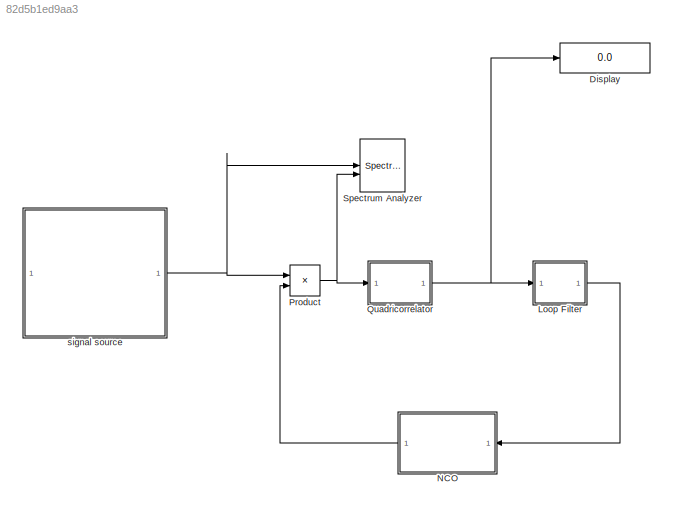
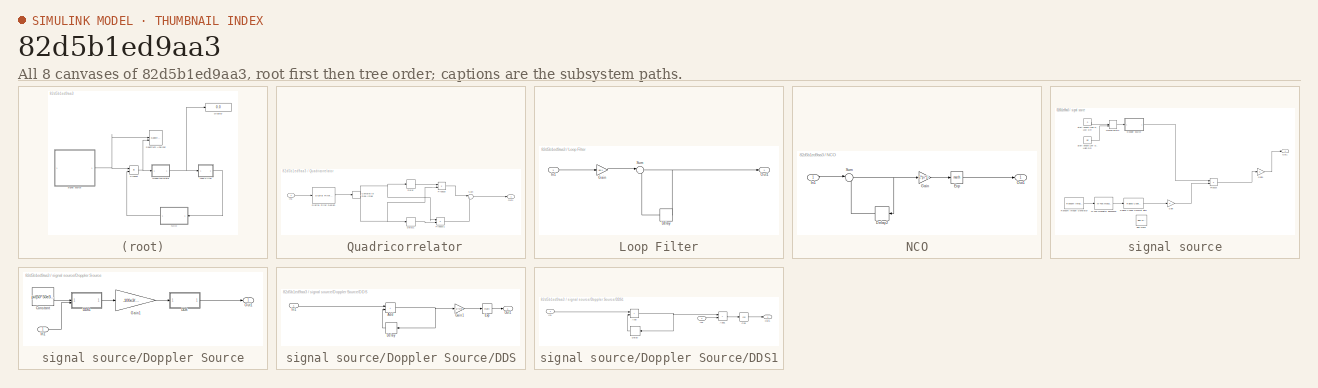
[diagram: thumbnail index - all 8 canvases of the model, root first then tree order]
MODEL slx_82d5b1ed9aa3
KIND model
CONFIG AbsTol = auto
CONFIG EnableMultiTasking = off
CONFIG FixedStep = auto
CONFIG MaxStep = auto
CONFIG MinStep = auto
CONFIG RelTol = 1e-3
CONFIG SampleTimeConstraint = Unconstrained
CONFIG SolverName = VariableStepAuto
CONFIG StartTime = 0.0
CONFIG StopTime = 10
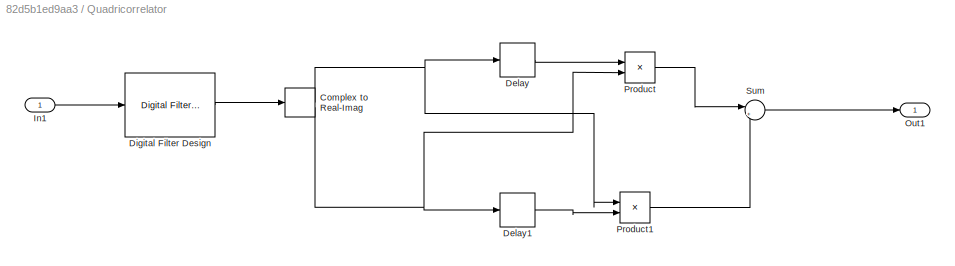
BLOCK [SubSystem]  Quadricorrelator
BLOCK [ComplexToRealImag]  Quadricorrelator/Complex to Real-Imag
BLOCK [Delay]  Quadricorrelator/Delay
  DelayLength = 1
  InputPortMap = u0
BLOCK [Delay]  Quadricorrelator/Delay1
  DelayLength = 1
  InputPortMap = u0
BLOCK [Reference]  Quadricorrelator/Digital Filter Design  REF=dsparch4/Digital
Filter Design
  SourceBlock = dsparch4/Digital\nFilter Design
  SourceType = Digital Filter Design
  UserDataPersistent = on
BLOCK [Inport]  Quadricorrelator/In1
BLOCK [Outport]  Quadricorrelator/Out1
BLOCK [Product]  Quadricorrelator/Product
BLOCK [Product]  Quadricorrelator/Product1
BLOCK [Sum]  Quadricorrelator/Sum
  Inputs = |+-
BLOCK [Display] Display
  Decimation = 1
BLOCK [SubSystem] Loop Filter
BLOCK [Delay] Loop Filter/Delay
  DelayLength = 1
  InputPortMap = u0
BLOCK [Gain] Loop Filter/Gain
  Gain = 8e-1
BLOCK [Inport] Loop Filter/In1
BLOCK [Outport] Loop Filter/Out1
BLOCK [Sum] Loop Filter/Sum
  Inputs = |++
BLOCK [SubSystem] NCO
  NameLocation = top
BLOCK [Delay] NCO/Delay2
  DelayLength = 1
  InputPortMap = u0
  NameLocation = top
BLOCK [Math] NCO/Exp
BLOCK [Gain] NCO/Gain
  Gain = -2*pi*1i
BLOCK [Inport] NCO/In1
BLOCK [Outport] NCO/Out1
BLOCK [Sum] NCO/Sum
  Inputs = |++
BLOCK [Product] Product
BLOCK [SpectrumAnalyzer] Spectrum Analyzer
  DefaultConfigurationName = spbscopes.SpectrumAnalyzerBlockCfg
  NumInputPorts = 2
  ScopeSpecificationString = spbscopes.SpectrumAnalyzerBlockCfg('CurrentConfiguration', extmgr.ConfigurationSet(extmgr.Configuration('Core','General UI',true,'FigureColor',[0.12941     0.12941     0.12941]),extmgr.Configuration('Visuals','Spectrum',true,'Title','','YLabel','','MinYLim','-103.4567','MaxYLim','13.2493','Legend',false,'AxesProperties',struct('XGrid',{'on','on'},'YGrid',{'on','on'},'ZGrid',{'on','on'},'Color',{[0...<+2468ch>
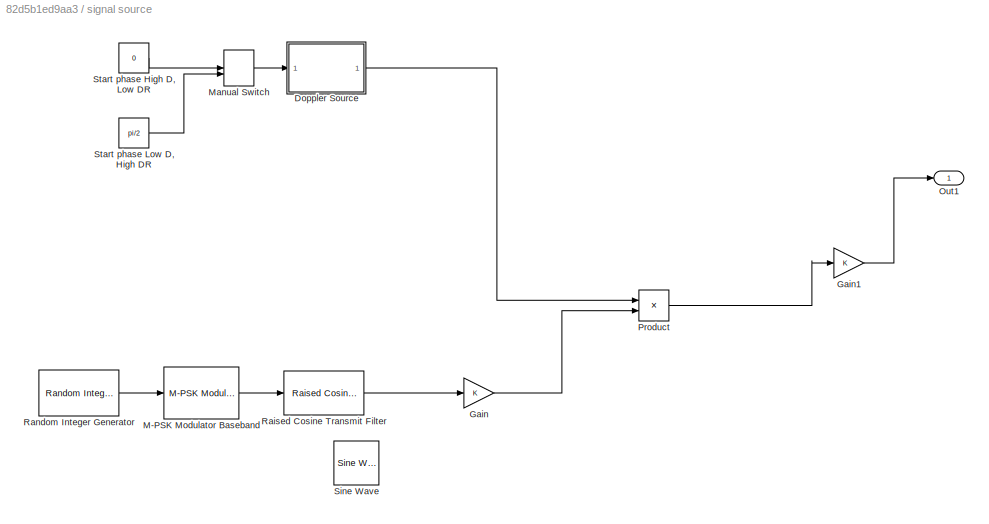
BLOCK [SubSystem] signal source
BLOCK [SubSystem] signal source/Doppler Source
BLOCK [Constant] signal source/Doppler Source/Constant
  SampleTime = 1/(50e3*8)
  Value = pi/(50*50e3*8)
BLOCK [SubSystem] signal source/Doppler Source/DDS
BLOCK [Sum] signal source/Doppler Source/DDS/Add
  IconShape = rectangular
BLOCK [Delay] signal source/Doppler Source/DDS/Delay
  DelayLength = 1
  InputPortMap = u0
  NameLocation = top
  SampleTime = 1/(50e3*8)
BLOCK [Math] signal source/Doppler Source/DDS/Exp
BLOCK [Gain] signal source/Doppler Source/DDS/Gain1
  Gain = -1i*2*pi
BLOCK [Inport] signal source/Doppler Source/DDS/In1
BLOCK [Outport] signal source/Doppler Source/DDS/Out1
BLOCK [SubSystem] signal source/Doppler Source/DDS1
BLOCK [Sum] signal source/Doppler Source/DDS1/Add
  IconShape = rectangular
BLOCK [Sum] signal source/Doppler Source/DDS1/Add1
  IconShape = rectangular
BLOCK [Trigonometry] signal source/Doppler Source/DDS1/Cos
  Operator = cos
BLOCK [Delay] signal source/Doppler Source/DDS1/Delay
  DelayLength = 1
  InputPortMap = u0
  NameLocation = top
  SampleTime = 1/(50e3*8)
BLOCK [Inport] signal source/Doppler Source/DDS1/In1
BLOCK [Inport] signal source/Doppler Source/DDS1/In2
  Port = 2
BLOCK [Outport] signal source/Doppler Source/DDS1/Out1
BLOCK [Gain] signal source/Doppler Source/Gain1
  Gain = -100e3/(50e3*8)
BLOCK [Inport] signal source/Doppler Source/In1
BLOCK [Outport] signal source/Doppler Source/Out1
BLOCK [Gain] signal source/Gain
BLOCK [Gain] signal source/Gain1
BLOCK [Reference] signal source/M-PSK Modulator Baseband  REF=commdigbbndpm3/M-PSK
Modulator
Baseband
  SourceBlock = commdigbbndpm3/M-PSK\nModulator\nBaseband
  SourceType = M-PSK Modulator Baseband
BLOCK [ManualSwitch] signal source/Manual Switch
BLOCK [Outport] signal source/Out1
BLOCK [Product] signal source/Product
BLOCK [Reference] signal source/Raised Cosine Transmit Filter  REF=commfilt2/Raised Cosine
Transmit Filter
  SourceBlock = commfilt2/Raised Cosine\nTransmit Filter
  SourceType = Raised Cosine Transmit Filter
  UserDataPersistent = on
BLOCK [Reference] signal source/Random Integer Generator  REF=commrandsrc3/Random Integer
Generator
  SourceBlock = commrandsrc3/Random Integer\nGenerator
  SourceType = Random Integer Generator
BLOCK [Reference] signal source/Sine Wave  REF=dspsrcs4/Sine Wave
  SourceBlock = dspsrcs4/Sine Wave
  SourceType = Sine Wave
BLOCK [Constant] signal source/Start phase High D, Low DR
  SampleTime = 1/(50e3*8)
  Value = 0
BLOCK [Constant] signal source/Start phase Low D, High DR
  SampleTime = 1/(50e3*8)
  Value = pi/2
NET  Quadricorrelator/Complex to Real-Imag:1 ->  Quadricorrelator/Delay:1,  Quadricorrelator/Product1:1
NET  Quadricorrelator/Complex to Real-Imag:2 ->  Quadricorrelator/Delay1:1,  Quadricorrelator/Product:2
LINE  Quadricorrelator/Delay1:1 ->  Quadricorrelator/Product1:2
LINE  Quadricorrelator/Delay:1 ->  Quadricorrelator/Product:1
LINE  Quadricorrelator/Digital Filter Design:1 ->  Quadricorrelator/Complex to Real-Imag:1
LINE  Quadricorrelator/In1:1 ->  Quadricorrelator/Digital Filter Design:1
LINE  Quadricorrelator/Product1:1 ->  Quadricorrelator/Sum:2
LINE  Quadricorrelator/Product:1 ->  Quadricorrelator/Sum:1
LINE  Quadricorrelator/Sum:1 ->  Quadricorrelator/Out1:1
NET  Quadricorrelator:1 -> Display:1, Loop Filter:1
LINE Loop Filter/Delay:1 -> Loop Filter/Sum:2
LINE Loop Filter/Gain:1 -> Loop Filter/Sum:1
LINE Loop Filter/In1:1 -> Loop Filter/Gain:1
NET Loop Filter/Sum:1 -> Loop Filter/Delay:1, Loop Filter/Out1:1
LINE Loop Filter:1 -> NCO:1
LINE NCO/Delay2:1 -> NCO/Sum:2
LINE NCO/Exp:1 -> NCO/Out1:1
LINE NCO/Gain:1 -> NCO/Exp:1
LINE NCO/In1:1 -> NCO/Sum:1
NET NCO/Sum:1 -> NCO/Delay2:1, NCO/Gain:1
LINE NCO:1 -> Product:2
NET Product:1 ->  Quadricorrelator:1, Spectrum Analyzer:2
LINE signal source/Doppler Source/Constant:1 -> signal source/Doppler Source/DDS1:1
NET signal source/Doppler Source/DDS/Add:1 -> signal source/Doppler Source/DDS/Delay:1, signal source/Doppler Source/DDS/Gain1:1
LINE signal source/Doppler Source/DDS/Delay:1 -> signal source/Doppler Source/DDS/Add:2
LINE signal source/Doppler Source/DDS/Exp:1 -> signal source/Doppler Source/DDS/Out1:1
LINE signal source/Doppler Source/DDS/Gain1:1 -> signal source/Doppler Source/DDS/Exp:1
LINE signal source/Doppler Source/DDS/In1:1 -> signal source/Doppler Source/DDS/Add:1
LINE signal source/Doppler Source/DDS1/Add1:1 -> signal source/Doppler Source/DDS1/Cos:1
NET signal source/Doppler Source/DDS1/Add:1 -> signal source/Doppler Source/DDS1/Add1:1, signal source/Doppler Source/DDS1/Delay:1
LINE signal source/Doppler Source/DDS1/Cos:1 -> signal source/Doppler Source/DDS1/Out1:1
LINE signal source/Doppler Source/DDS1/Delay:1 -> signal source/Doppler Source/DDS1/Add:2
LINE signal source/Doppler Source/DDS1/In1:1 -> signal source/Doppler Source/DDS1/Add:1
LINE signal source/Doppler Source/DDS1/In2:1 -> signal source/Doppler Source/DDS1/Add1:2
LINE signal source/Doppler Source/DDS1:1 -> signal source/Doppler Source/Gain1:1
LINE signal source/Doppler Source/DDS:1 -> signal source/Doppler Source/Out1:1
LINE signal source/Doppler Source/Gain1:1 -> signal source/Doppler Source/DDS:1
LINE signal source/Doppler Source/In1:1 -> signal source/Doppler Source/DDS1:2
LINE signal source/Doppler Source:1 -> signal source/Product:1
LINE signal source/Gain1:1 -> signal source/Out1:1
LINE signal source/Gain:1 -> signal source/Product:2
LINE signal source/M-PSK Modulator Baseband:1 -> signal source/Raised Cosine Transmit Filter:1
LINE signal source/Manual Switch:1 -> signal source/Doppler Source:1
LINE signal source/Product:1 -> signal source/Gain1:1
LINE signal source/Raised Cosine Transmit Filter:1 -> signal source/Gain:1
LINE signal source/Random Integer Generator:1 -> signal source/M-PSK Modulator Baseband:1
LINE signal source/Start phase High D, Low DR:1 -> signal source/Manual Switch:1
LINE signal source/Start phase Low D, High DR:1 -> signal source/Manual Switch:2
NET signal source:1 -> Product:1, Spectrum Analyzer:1
note: NET lines group one-source signal fan-out (src -> all destinations, sorted); 1:1 wires keep LINE
